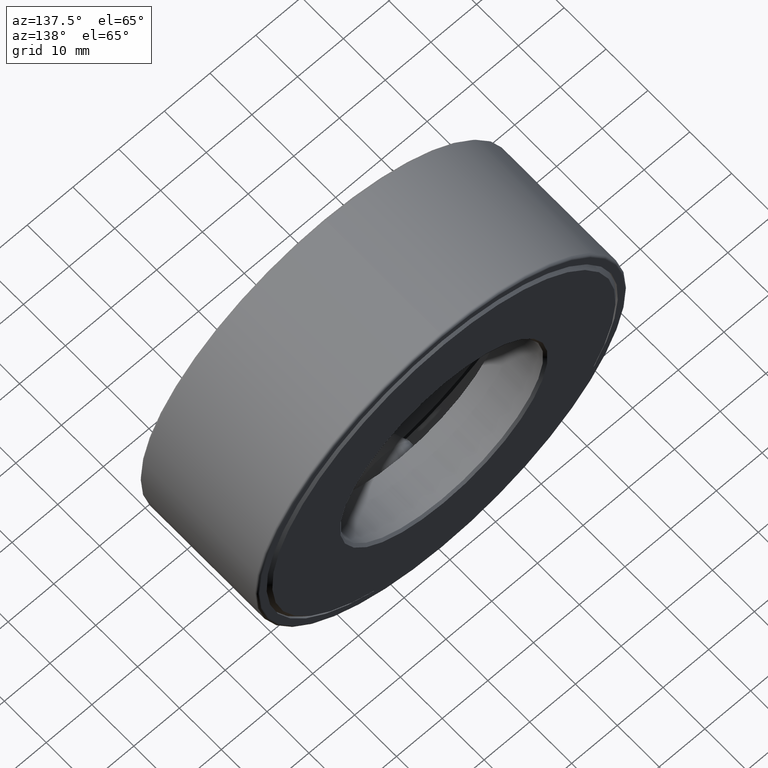
[diagram: clean part render]
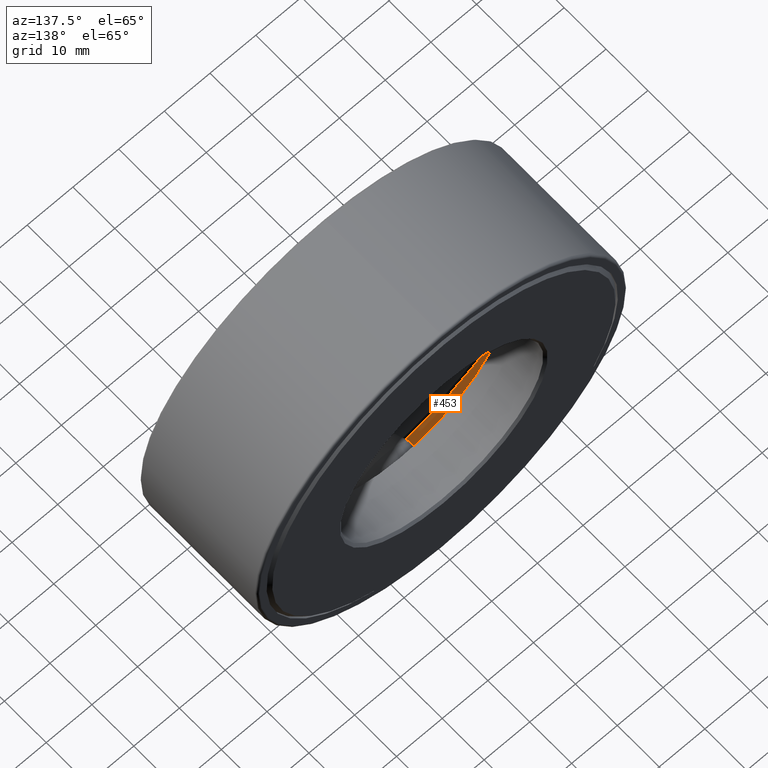
[diagram: same view with one face highlighted and labeled with its STEP entity id]
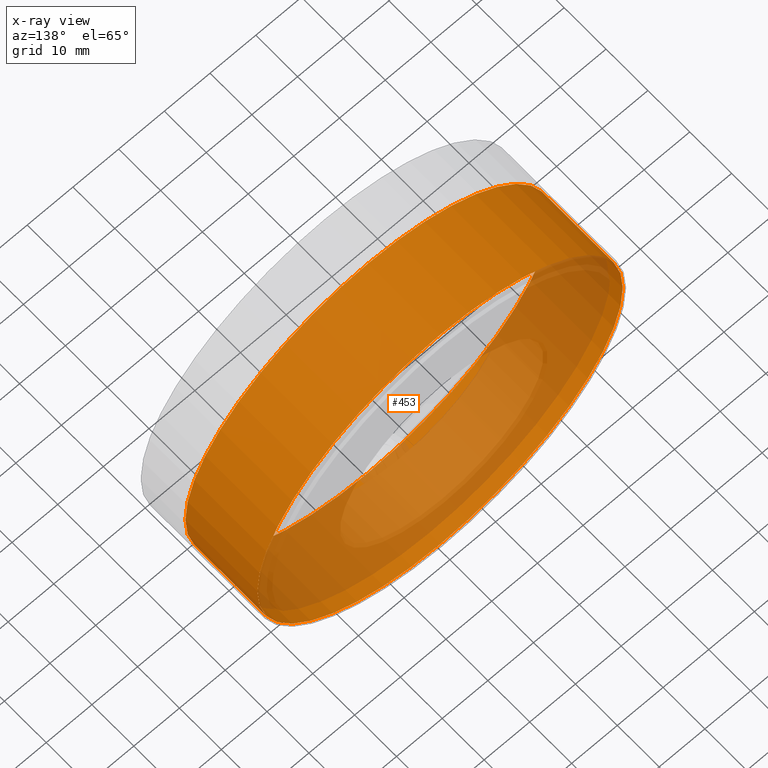
[diagram: x-ray of the same camera — body ghosted, the highlighted face saturated]
A machine part, auxiliary view. The second image highlights one B-rep face of the part: STEP entity #453.
The next image is the same camera in x-ray: the body ghosted, the highlighted face saturated — about 38% of this face is hidden behind the body in this view.
In plain terms, the highlighted cylindrical surface (bore or boss wall) has radius 39.9733 mm, axis along (-0, 1, -0).
Its self-contained STEP definition (entity closure, byte-faithful):
#3 = DIRECTION ( 'NONE',  ( -0.0000000000000000000, 1.000000000000000000, -0.0000000000000000000 ) ) ;
#11 = CARTESIAN_POINT ( 'NONE',  ( 0.0000000000000000000, 0.0000000000000000000, 0.0000000000000000000 ) ) ;
#123 = CARTESIAN_POINT ( 'NONE',  ( 0.0000000000000000000, 0.4124999999999999200, 0.0000000000000000000 ) ) ;
#192 = CARTESIAN_POINT ( 'NONE',  ( 0.0000000000000000000, 0.4124999999999999200, 1.573749999999999800 ) ) ;
#205 = CIRCLE ( 'NONE', #482, 1.573749999999999800 ) ;
#239 = VERTEX_POINT ( 'NONE', #289 ) ;
#245 = EDGE_CURVE ( 'NONE', #239, #239, #205, .T. ) ;
#259 = AXIS2_PLACEMENT_3D ( 'NONE', #11, #344, #572 ) ;
#272 = CIRCLE ( 'NONE', #535, 1.573749999999999800 ) ;
#289 = CARTESIAN_POINT ( 'NONE',  ( 0.0000000000000000000, 1.089999999999999900, 1.573749999999999800 ) ) ;
#292 = CARTESIAN_POINT ( 'NONE',  ( 0.0000000000000000000, 1.089999999999999900, 0.0000000000000000000 ) ) ;
#344 = DIRECTION ( 'NONE',  ( -0.0000000000000000000, 1.000000000000000000, -0.0000000000000000000 ) ) ;
#376 = ORIENTED_EDGE ( 'NONE', *, *, #519, .F. ) ;
#379 = CYLINDRICAL_SURFACE ( 'NONE', #259, 1.573750000000000200 ) ;
#437 = FACE_OUTER_BOUND ( 'NONE', #473, .T. ) ;
#448 = DIRECTION ( 'NONE',  ( -0.0000000000000000000, 1.000000000000000000, -0.0000000000000000000 ) ) ;
#453 = ADVANCED_FACE ( 'NONE', ( #437, #476 ), #379, .F. ) ;
#457 = VERTEX_POINT ( 'NONE', #192 ) ;
#472 = EDGE_LOOP ( 'NONE', ( #573 ) ) ;
#473 = EDGE_LOOP ( 'NONE', ( #376 ) ) ;
#476 = FACE_OUTER_BOUND ( 'NONE', #472, .T. ) ;
#482 = AXIS2_PLACEMENT_3D ( 'NONE', #292, #3, #564 ) ;
#519 = EDGE_CURVE ( 'NONE', #457, #457, #272, .T. ) ;
#535 = AXIS2_PLACEMENT_3D ( 'NONE', #123, #448, #584 ) ;
#564 = DIRECTION ( 'NONE',  ( 0.0000000000000000000, 0.0000000000000000000, 1.000000000000000000 ) ) ;
#572 = DIRECTION ( 'NONE',  ( 0.0000000000000000000, 0.0000000000000000000, 1.000000000000000000 ) ) ;
#573 = ORIENTED_EDGE ( 'NONE', *, *, #245, .T. ) ;
#584 = DIRECTION ( 'NONE',  ( 0.0000000000000000000, 0.0000000000000000000, 1.000000000000000000 ) ) ;